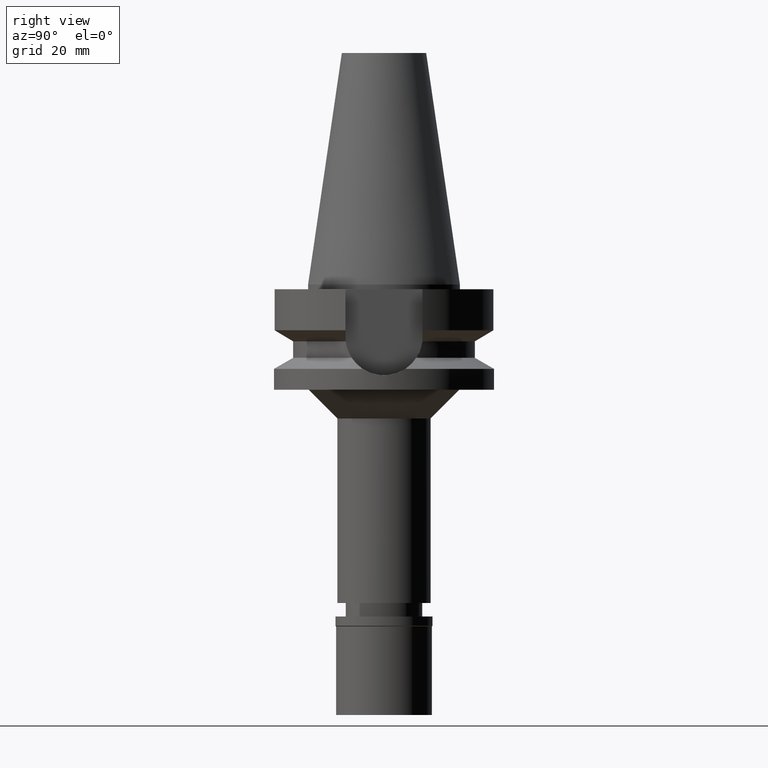
[diagram: clean part render]
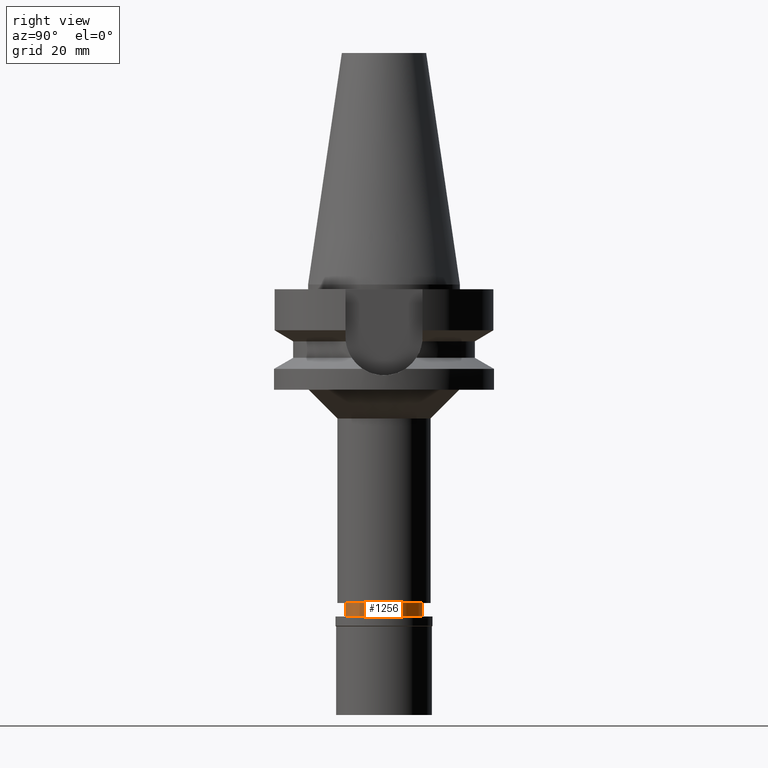
[diagram: same view with one face highlighted and labeled with its STEP entity id]
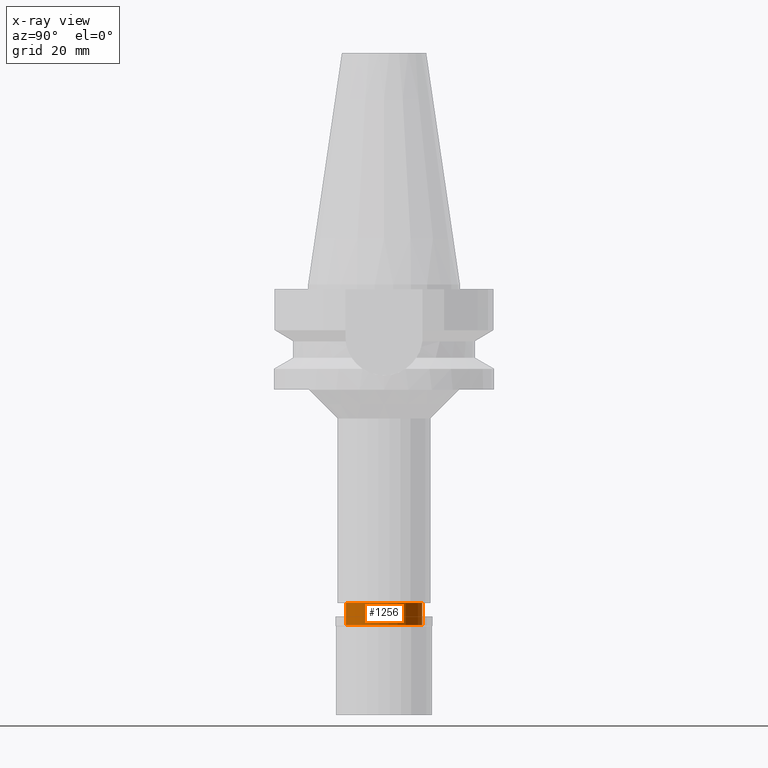
[diagram: x-ray of the same camera — body ghosted, the highlighted face saturated]
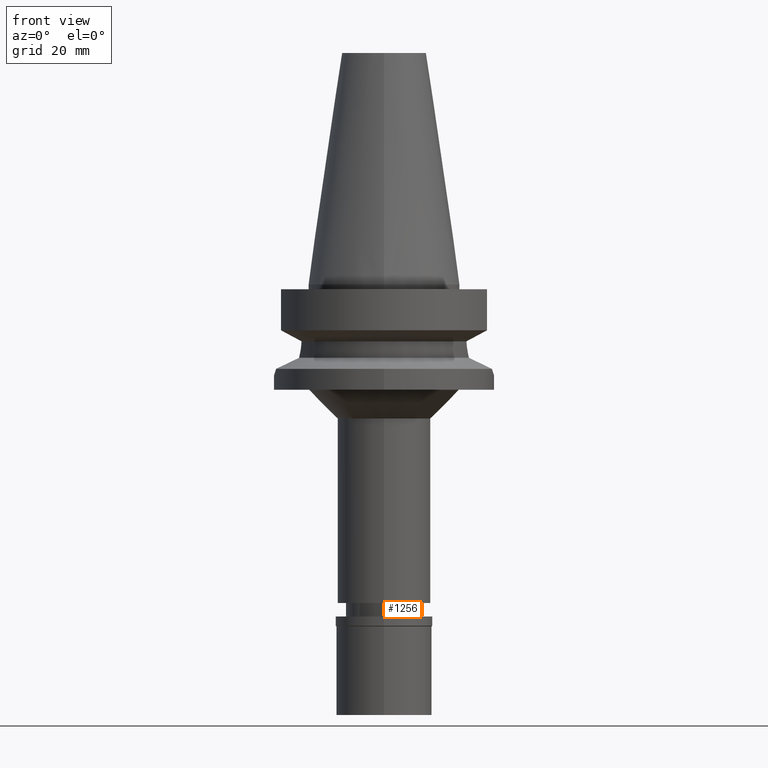
[diagram: same view with one face highlighted and labeled with its STEP entity id]
A machine part, right view. The second image highlights one B-rep face of the part: STEP entity #1256.
The next image is the same camera in x-ray: the body ghosted, the highlighted face saturated — about 0% of this face is hidden behind the body in this view.
A second angle (front view) of the same face is appended — the face is thin or edge-on in the first view.
In plain terms, the highlighted cylindrical surface (partial cylindrical patch) has radius 8 mm, axis along (0, 0, -1).
Its self-contained STEP definition (entity closure, byte-faithful):
#2 = CIRCLE ( 'NONE', #1020, 8.000000000000000000 ) ;
#38 = EDGE_LOOP ( 'NONE', ( #2598, #1855, #1052, #2500 ) ) ;
#50 = VECTOR ( 'NONE', #1419, 1000.000000000000000 ) ;
#54 = CARTESIAN_POINT ( 'NONE',  ( 0.0000000000000000000, 8.000000000000000000, -66.60000000000000853 ) ) ;
#201 = CARTESIAN_POINT ( 'NONE',  ( 0.0000000000000000000, 1.897222821238999746E-14, 54.91999999999999460 ) ) ;
#262 = DIRECTION ( 'NONE',  ( 0.0000000000000000000, 0.0000000000000000000, -1.000000000000000000 ) ) ;
#331 = CARTESIAN_POINT ( 'NONE',  ( 0.0000000000000000000, 8.000000000000000000, -71.20000000000000284 ) ) ;
#384 = CARTESIAN_POINT ( 'NONE',  ( 0.0000000000000000000, 1.897222821238999746E-14, -66.60000000000000853 ) ) ;
#464 = DIRECTION ( 'NONE',  ( 0.0000000000000000000, -1.000000000000000000, 0.0000000000000000000 ) ) ;
#538 = EDGE_CURVE ( 'NONE', #1013, #2754, #2718, .T. ) ;
#618 = CARTESIAN_POINT ( 'NONE',  ( 0.0000000000000000000, -8.000000000000000000, -66.60000000000000853 ) ) ;
#664 = EDGE_CURVE ( 'NONE', #1445, #842, #2, .T. ) ;
#693 = DIRECTION ( 'NONE',  ( 0.0000000000000000000, 0.0000000000000000000, -1.000000000000000000 ) ) ;
#774 = LINE ( 'NONE', #2903, #2913 ) ;
#842 = VERTEX_POINT ( 'NONE', #618 ) ;
#979 = CARTESIAN_POINT ( 'NONE',  ( 0.0000000000000000000, 1.897222821238999746E-14, -71.20000000000000284 ) ) ;
#1013 = VERTEX_POINT ( 'NONE', #2775 ) ;
#1020 = AXIS2_PLACEMENT_3D ( 'NONE', #384, #2249, #1768 ) ;
#1052 = ORIENTED_EDGE ( 'NONE', *, *, #538, .T. ) ;
#1196 = CARTESIAN_POINT ( 'NONE',  ( 0.0000000000000000000, 8.000000000000000000, -66.60000000000000853 ) ) ;
#1256 = ADVANCED_FACE ( 'NONE', ( #3051 ), #2580, .T. ) ;
#1411 = EDGE_CURVE ( 'NONE', #842, #1013, #774, .T. ) ;
#1419 = DIRECTION ( 'NONE',  ( 0.0000000000000000000, 0.0000000000000000000, -1.000000000000000000 ) ) ;
#1445 = VERTEX_POINT ( 'NONE', #54 ) ;
#1450 = LINE ( 'NONE', #1196, #50 ) ;
#1464 = DIRECTION ( 'NONE',  ( 0.0000000000000000000, 0.0000000000000000000, 1.000000000000000000 ) ) ;
#1500 = DIRECTION ( 'NONE',  ( 0.0000000000000000000, -1.000000000000000000, 0.0000000000000000000 ) ) ;
#1768 = DIRECTION ( 'NONE',  ( 0.0000000000000000000, 1.000000000000000000, 0.0000000000000000000 ) ) ;
#1855 = ORIENTED_EDGE ( 'NONE', *, *, #1411, .T. ) ;
#1957 = AXIS2_PLACEMENT_3D ( 'NONE', #979, #1464, #1500 ) ;
#2249 = DIRECTION ( 'NONE',  ( 0.0000000000000000000, 0.0000000000000000000, -1.000000000000000000 ) ) ;
#2425 = EDGE_CURVE ( 'NONE', #1445, #2754, #1450, .T. ) ;
#2500 = ORIENTED_EDGE ( 'NONE', *, *, #2425, .F. ) ;
#2571 = AXIS2_PLACEMENT_3D ( 'NONE', #201, #693, #464 ) ;
#2580 = CYLINDRICAL_SURFACE ( 'NONE', #2571, 8.000000000000000000 ) ;
#2598 = ORIENTED_EDGE ( 'NONE', *, *, #664, .T. ) ;
#2718 = CIRCLE ( 'NONE', #1957, 8.000000000000000000 ) ;
#2754 = VERTEX_POINT ( 'NONE', #331 ) ;
#2775 = CARTESIAN_POINT ( 'NONE',  ( 0.0000000000000000000, -8.000000000000000000, -71.20000000000000284 ) ) ;
#2903 = CARTESIAN_POINT ( 'NONE',  ( 0.0000000000000000000, -8.000000000000000000, -66.60000000000000853 ) ) ;
#2913 = VECTOR ( 'NONE', #262, 1000.000000000000000 ) ;
#3051 = FACE_OUTER_BOUND ( 'NONE', #38, .T. ) ;